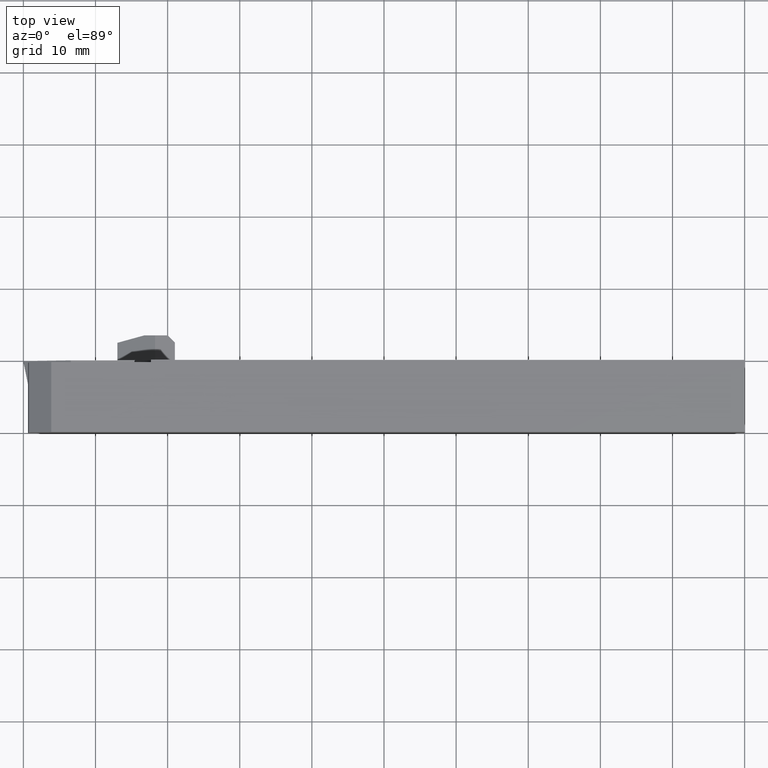
[diagram: clean part render]
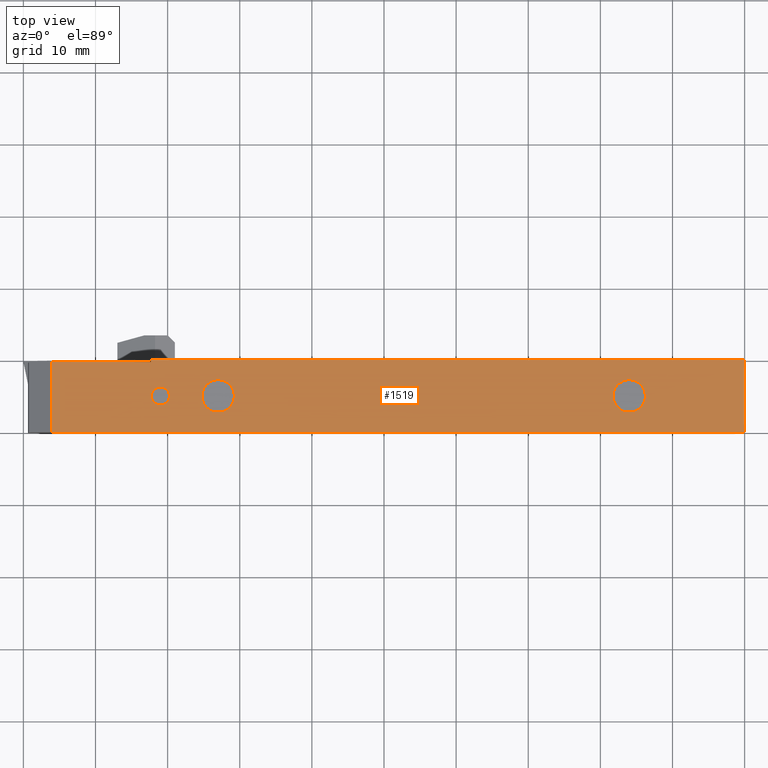
[diagram: same view with one face highlighted and labeled with its STEP entity id]
A machine part, top view. The second image highlights one B-rep face of the part: STEP entity #1519.
In plain terms, the highlighted planar face has unit normal (0, 0, 1).
Its self-contained STEP definition (entity closure, byte-faithful):
#23 = DIRECTION ( 'NONE',  ( 0.0000000000000000000, -1.000000000000000000, 0.0000000000000000000 ) ) ;
#30 = CARTESIAN_POINT ( 'NONE',  ( 27.00000000000000000, -5.000000000000008900, -9.999999999999962700 ) ) ;
#49 = VECTOR ( 'NONE', #1660, 1000.000000000000000 ) ;
#65 = CARTESIAN_POINT ( 'NONE',  ( 17.66183445898711900, -0.2999999999999999900, -9.999999999999980500 ) ) ;
#75 = ORIENTED_EDGE ( 'NONE', *, *, #1479, .F. ) ;
#112 = EDGE_CURVE ( 'NONE', #1637, #1910, #635, .T. ) ;
#146 = EDGE_CURVE ( 'NONE', #266, #437, #1023, .T. ) ;
#157 = DIRECTION ( 'NONE',  ( 0.0000000000000000000, 0.0000000000000000000, 1.000000000000000000 ) ) ;
#216 = CARTESIAN_POINT ( 'NONE',  ( 19.00000000000000400, -5.000000000000000000, -9.999999999999962700 ) ) ;
#222 = LINE ( 'NONE', #1133, #1886 ) ;
#260 = ORIENTED_EDGE ( 'NONE', *, *, #1378, .T. ) ;
#266 = VERTEX_POINT ( 'NONE', #406 ) ;
#276 = CIRCLE ( 'NONE', #605, 1.250000000000001100 ) ;
#309 = VERTEX_POINT ( 'NONE', #737 ) ;
#311 = DIRECTION ( 'NONE',  ( -1.000000000000000000, -0.0000000000000000000, 0.0000000000000000000 ) ) ;
#313 = EDGE_CURVE ( 'NONE', #1528, #349, #1100, .T. ) ;
#322 = AXIS2_PLACEMENT_3D ( 'NONE', #1290, #157, #1127 ) ;
#336 = DIRECTION ( 'NONE',  ( 0.0000000000000000000, 0.0000000000000000000, 1.000000000000000000 ) ) ;
#349 = VERTEX_POINT ( 'NONE', #577 ) ;
#352 = DIRECTION ( 'NONE',  ( 0.0000000000000000000, 0.0000000000000000000, 1.000000000000000000 ) ) ;
#391 = FACE_BOUND ( 'NONE', #603, .T. ) ;
#397 = ORIENTED_EDGE ( 'NONE', *, *, #502, .F. ) ;
#400 = VERTEX_POINT ( 'NONE', #860 ) ;
#406 = CARTESIAN_POINT ( 'NONE',  ( 100.0000000000000000, 0.0000000000000000000, -9.999999999999962700 ) ) ;
#423 = DIRECTION ( 'NONE',  ( 0.0000000000000000000, 0.0000000000000000000, 1.000000000000000000 ) ) ;
#431 = EDGE_CURVE ( 'NONE', #1035, #400, #222, .T. ) ;
#437 = VERTEX_POINT ( 'NONE', #975 ) ;
#458 = VERTEX_POINT ( 'NONE', #1297 ) ;
#487 = ORIENTED_EDGE ( 'NONE', *, *, #808, .F. ) ;
#502 = EDGE_CURVE ( 'NONE', #1408, #400, #1499, .T. ) ;
#565 = AXIS2_PLACEMENT_3D ( 'NONE', #1797, #336, #1944 ) ;
#567 = LINE ( 'NONE', #65, #49 ) ;
#577 = CARTESIAN_POINT ( 'NONE',  ( 86.25000000000001400, -5.000000000000008900, -9.999999999999962700 ) ) ;
#603 = EDGE_LOOP ( 'NONE', ( #2034, #75 ) ) ;
#605 = AXIS2_PLACEMENT_3D ( 'NONE', #216, #352, #672 ) ;
#615 = DIRECTION ( 'NONE',  ( 0.0000000000000000000, 0.0000000000000000000, 1.000000000000000000 ) ) ;
#619 = AXIS2_PLACEMENT_3D ( 'NONE', #30, #814, #2018 ) ;
#620 = ORIENTED_EDGE ( 'NONE', *, *, #1870, .F. ) ;
#629 = CARTESIAN_POINT ( 'NONE',  ( 17.75000000000000400, -5.000000000000000000, -9.999999999999962700 ) ) ;
#635 = CIRCLE ( 'NONE', #985, 1.250000000000001100 ) ;
#641 = CIRCLE ( 'NONE', #619, 2.249999999999998700 ) ;
#672 = DIRECTION ( 'NONE',  ( 1.000000000000000000, 0.0000000000000000000, 0.0000000000000000000 ) ) ;
#687 = CARTESIAN_POINT ( 'NONE',  ( 0.0000000000000000000, -10.00000000000000000, -9.999999999999962700 ) ) ;
#689 = DIRECTION ( 'NONE',  ( -1.000000000000000000, 0.0000000000000000000, 0.0000000000000000000 ) ) ;
#719 = CIRCLE ( 'NONE', #565, 2.249999999999998700 ) ;
#737 = CARTESIAN_POINT ( 'NONE',  ( 17.66183445898711900, -0.2999999999999999900, -9.999999999999980500 ) ) ;
#765 = VECTOR ( 'NONE', #1956, 1000.000000000000000 ) ;
#772 = FACE_BOUND ( 'NONE', #1616, .T. ) ;
#784 = DIRECTION ( 'NONE',  ( 1.000000000000000000, 0.0000000000000000000, 0.0000000000000000000 ) ) ;
#785 = CARTESIAN_POINT ( 'NONE',  ( 3.860172349924876600, -0.2999999999999973200, -9.999999999999984000 ) ) ;
#791 = EDGE_CURVE ( 'NONE', #1136, #458, #641, .T. ) ;
#808 = EDGE_CURVE ( 'NONE', #309, #437, #902, .T. ) ;
#814 = DIRECTION ( 'NONE',  ( 0.0000000000000000000, 0.0000000000000000000, 1.000000000000000000 ) ) ;
#845 = DIRECTION ( 'NONE',  ( -1.000000000000000000, -0.0000000000000000000, 0.0000000000000000000 ) ) ;
#860 = CARTESIAN_POINT ( 'NONE',  ( 3.860172349924908100, -10.00000000000000000, -9.999999999999960900 ) ) ;
#863 = EDGE_CURVE ( 'NONE', #458, #1136, #719, .T. ) ;
#879 = DIRECTION ( 'NONE',  ( 0.0000000000000000000, 1.000000000000000000, 0.0000000000000000000 ) ) ;
#902 = LINE ( 'NONE', #1994, #1749 ) ;
#975 = CARTESIAN_POINT ( 'NONE',  ( 17.66183445898711900, 0.0000000000000000000, -9.999999999999980500 ) ) ;
#985 = AXIS2_PLACEMENT_3D ( 'NONE', #1589, #615, #784 ) ;
#997 = CARTESIAN_POINT ( 'NONE',  ( 100.0000000000000000, -10.00000000000000000, -9.999999999999962700 ) ) ;
#1000 = ORIENTED_EDGE ( 'NONE', *, *, #863, .F. ) ;
#1023 = LINE ( 'NONE', #1276, #1979 ) ;
#1035 = VERTEX_POINT ( 'NONE', #785 ) ;
#1100 = CIRCLE ( 'NONE', #1542, 2.250000000000001800 ) ;
#1121 = FACE_OUTER_BOUND ( 'NONE', #1711, .T. ) ;
#1124 = VECTOR ( 'NONE', #845, 1000.000000000000000 ) ;
#1127 = DIRECTION ( 'NONE',  ( 1.000000000000000000, 0.0000000000000000000, 0.0000000000000000000 ) ) ;
#1133 = CARTESIAN_POINT ( 'NONE',  ( 3.860172349924905000, -10.00000000000000000, -9.999999999999962700 ) ) ;
#1136 = VERTEX_POINT ( 'NONE', #1171 ) ;
#1171 = CARTESIAN_POINT ( 'NONE',  ( 29.25000000000000000, -5.000000000000008900, -9.999999999999962700 ) ) ;
#1220 = FACE_BOUND ( 'NONE', #1388, .T. ) ;
#1258 = CARTESIAN_POINT ( 'NONE',  ( 81.75000000000000000, -5.000000000000008900, -9.999999999999962700 ) ) ;
#1263 = PLANE ( 'NONE',  #1907 ) ;
#1276 = CARTESIAN_POINT ( 'NONE',  ( 0.0000000000000000000, 0.0000000000000000000, -9.999999999999962700 ) ) ;
#1290 = CARTESIAN_POINT ( 'NONE',  ( 84.00000000000000000, -5.000000000000008900, -9.999999999999962700 ) ) ;
#1292 = ORIENTED_EDGE ( 'NONE', *, *, #791, .F. ) ;
#1297 = CARTESIAN_POINT ( 'NONE',  ( 24.75000000000000000, -5.000000000000008900, -9.999999999999962700 ) ) ;
#1314 = ORIENTED_EDGE ( 'NONE', *, *, #146, .T. ) ;
#1375 = ORIENTED_EDGE ( 'NONE', *, *, #313, .F. ) ;
#1378 = EDGE_CURVE ( 'NONE', #309, #1035, #567, .T. ) ;
#1388 = EDGE_LOOP ( 'NONE', ( #620, #1375 ) ) ;
#1393 = CARTESIAN_POINT ( 'NONE',  ( 84.00000000000000000, -5.000000000000008900, -9.999999999999962700 ) ) ;
#1408 = VERTEX_POINT ( 'NONE', #1829 ) ;
#1479 = EDGE_CURVE ( 'NONE', #1910, #1637, #276, .T. ) ;
#1492 = CIRCLE ( 'NONE', #322, 2.250000000000001800 ) ;
#1499 = LINE ( 'NONE', #687, #1124 ) ;
#1508 = ORIENTED_EDGE ( 'NONE', *, *, #1976, .T. ) ;
#1519 = ADVANCED_FACE ( 'NONE', ( #391, #1220, #772, #1121 ), #1263, .T. ) ;
#1522 = ORIENTED_EDGE ( 'NONE', *, *, #431, .T. ) ;
#1528 = VERTEX_POINT ( 'NONE', #1258 ) ;
#1542 = AXIS2_PLACEMENT_3D ( 'NONE', #1393, #423, #1547 ) ;
#1547 = DIRECTION ( 'NONE',  ( 1.000000000000000000, 0.0000000000000000000, 0.0000000000000000000 ) ) ;
#1589 = CARTESIAN_POINT ( 'NONE',  ( 19.00000000000000400, -5.000000000000000000, -9.999999999999962700 ) ) ;
#1616 = EDGE_LOOP ( 'NONE', ( #1292, #1000 ) ) ;
#1637 = VERTEX_POINT ( 'NONE', #1891 ) ;
#1652 = CARTESIAN_POINT ( 'NONE',  ( 0.0000000000000000000, -10.00000000000000000, -9.999999999999962700 ) ) ;
#1660 = DIRECTION ( 'NONE',  ( -1.000000000000000000, 0.0000000000000000000, -1.028559101518953900E-016 ) ) ;
#1711 = EDGE_LOOP ( 'NONE', ( #260, #1522, #397, #1508, #1314, #487 ) ) ;
#1749 = VECTOR ( 'NONE', #879, 1000.000000000000000 ) ;
#1797 = CARTESIAN_POINT ( 'NONE',  ( 27.00000000000000000, -5.000000000000008900, -9.999999999999962700 ) ) ;
#1805 = DIRECTION ( 'NONE',  ( 0.0000000000000000000, 0.0000000000000000000, 1.000000000000000000 ) ) ;
#1829 = CARTESIAN_POINT ( 'NONE',  ( 100.0000000000000000, -10.00000000000000000, -9.999999999999962700 ) ) ;
#1870 = EDGE_CURVE ( 'NONE', #349, #1528, #1492, .T. ) ;
#1886 = VECTOR ( 'NONE', #23, 1000.000000000000000 ) ;
#1891 = CARTESIAN_POINT ( 'NONE',  ( 20.25000000000000400, -5.000000000000000000, -9.999999999999962700 ) ) ;
#1907 = AXIS2_PLACEMENT_3D ( 'NONE', #1652, #1805, #689 ) ;
#1910 = VERTEX_POINT ( 'NONE', #629 ) ;
#1944 = DIRECTION ( 'NONE',  ( 1.000000000000000000, 0.0000000000000000000, 0.0000000000000000000 ) ) ;
#1956 = DIRECTION ( 'NONE',  ( 0.0000000000000000000, 1.000000000000000000, 0.0000000000000000000 ) ) ;
#1974 = LINE ( 'NONE', #997, #765 ) ;
#1976 = EDGE_CURVE ( 'NONE', #1408, #266, #1974, .T. ) ;
#1979 = VECTOR ( 'NONE', #311, 1000.000000000000000 ) ;
#1994 = CARTESIAN_POINT ( 'NONE',  ( 17.66183445898711900, -0.2999999999999999900, -9.999999999999980500 ) ) ;
#2018 = DIRECTION ( 'NONE',  ( 1.000000000000000000, 0.0000000000000000000, 0.0000000000000000000 ) ) ;
#2034 = ORIENTED_EDGE ( 'NONE', *, *, #112, .F. ) ;